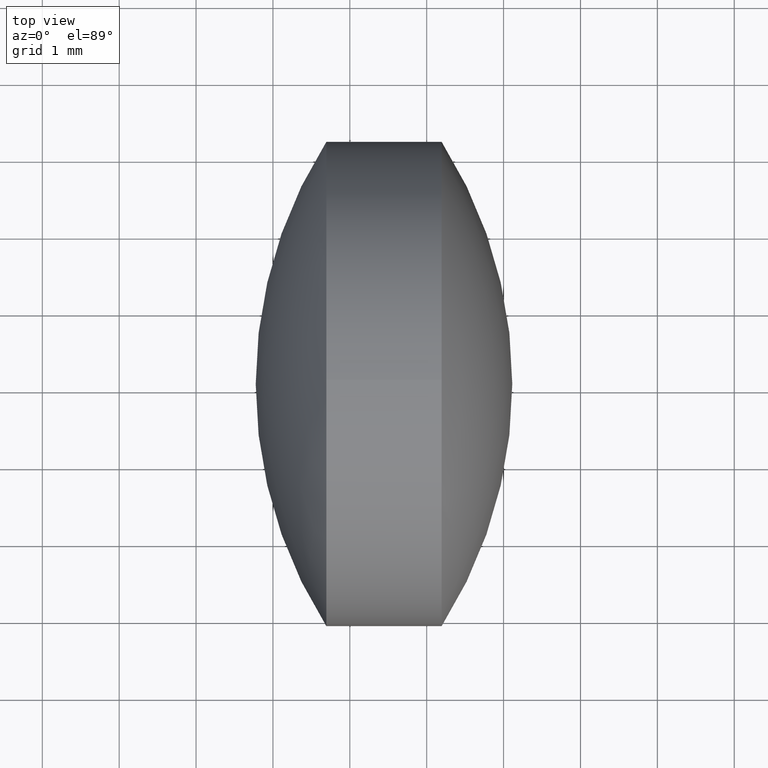
[diagram: clean part render]
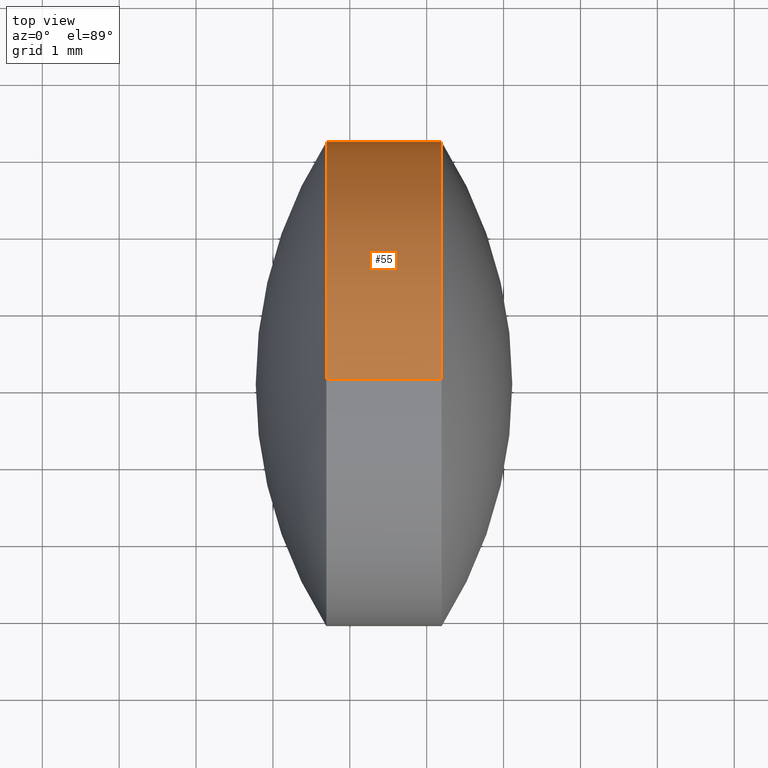
[diagram: same view with one face highlighted and labeled with its STEP entity id]
A machine part, top view. The second image highlights one B-rep face of the part: STEP entity #55.
In plain terms, the highlighted cylindrical surface (partial cylindrical patch) has radius 3.15 mm, axis along (-1, -0, -0).
Its self-contained STEP definition (entity closure, byte-faithful):
#3 = EDGE_CURVE ( 'NONE', #273, #116, #97, .T. ) ;
#5 = LINE ( 'NONE', #196, #64 ) ;
#13 = ORIENTED_EDGE ( 'NONE', *, *, #186, .T. ) ;
#16 = CARTESIAN_POINT ( 'NONE',  ( 20.69444092659728800, 12.05837547940993200, 3.150012600050391900 ) ) ;
#20 = AXIS2_PLACEMENT_3D ( 'NONE', #143, #70, #297 ) ;
#23 = EDGE_LOOP ( 'NONE', ( #282, #13, #324, #58, #217, #345 ) ) ;
#24 = AXIS2_PLACEMENT_3D ( 'NONE', #332, #112, #94 ) ;
#38 = CIRCLE ( 'NONE', #20, 3.150012600050391900 ) ;
#41 = CARTESIAN_POINT ( 'NONE',  ( 18.26476809820352200, 12.05837547940993200, -3.150012600050391900 ) ) ;
#45 = EDGE_CURVE ( 'NONE', #178, #152, #38, .T. ) ;
#48 = VERTEX_POINT ( 'NONE', #300 ) ;
#53 = CARTESIAN_POINT ( 'NONE',  ( 20.69444092659728800, 12.05837547940993200, -3.150012600050391900 ) ) ;
#55 = ADVANCED_FACE ( 'NONE', ( #294 ), #225, .T. ) ;
#58 = ORIENTED_EDGE ( 'NONE', *, *, #3, .F. ) ;
#64 = VECTOR ( 'NONE', #171, 1000.000000000000000 ) ;
#66 = EDGE_CURVE ( 'NONE', #178, #273, #5, .T. ) ;
#70 = DIRECTION ( 'NONE',  ( -1.000000000000000000, -0.0000000000000000000, -0.0000000000000000000 ) ) ;
#78 = DIRECTION ( 'NONE',  ( -1.000000000000000000, -0.0000000000000000000, -0.0000000000000000000 ) ) ;
#79 = AXIS2_PLACEMENT_3D ( 'NONE', #226, #99, #339 ) ;
#89 = CARTESIAN_POINT ( 'NONE',  ( 20.69444092659728800, 12.05837547940993200, 0.0000000000000000000 ) ) ;
#94 = DIRECTION ( 'NONE',  ( 0.0000000000000000000, 0.0000000000000000000, 1.000000000000000000 ) ) ;
#96 = DIRECTION ( 'NONE',  ( -1.000000000000000000, -0.0000000000000000000, -0.0000000000000000000 ) ) ;
#97 = CIRCLE ( 'NONE', #219, 3.150012600050391900 ) ;
#99 = DIRECTION ( 'NONE',  ( -1.000000000000000000, -0.0000000000000000000, -0.0000000000000000000 ) ) ;
#102 = DIRECTION ( 'NONE',  ( 0.0000000000000000000, 0.0000000000000000000, 1.000000000000000000 ) ) ;
#112 = DIRECTION ( 'NONE',  ( -1.000000000000000000, -0.0000000000000000000, -0.0000000000000000000 ) ) ;
#116 = VERTEX_POINT ( 'NONE', #166 ) ;
#134 = CIRCLE ( 'NONE', #140, 3.150012600050391900 ) ;
#140 = AXIS2_PLACEMENT_3D ( 'NONE', #185, #78, #102 ) ;
#143 = CARTESIAN_POINT ( 'NONE',  ( 22.19444092659728800, 12.05837547940993200, 0.0000000000000000000 ) ) ;
#152 = VERTEX_POINT ( 'NONE', #197 ) ;
#156 = VECTOR ( 'NONE', #96, 1000.000000000000000 ) ;
#164 = LINE ( 'NONE', #41, #156 ) ;
#166 = CARTESIAN_POINT ( 'NONE',  ( 20.69444092659728800, 15.20838807946032200, 0.0000000000000000000 ) ) ;
#171 = DIRECTION ( 'NONE',  ( -1.000000000000000000, -0.0000000000000000000, -0.0000000000000000000 ) ) ;
#178 = VERTEX_POINT ( 'NONE', #201 ) ;
#185 = CARTESIAN_POINT ( 'NONE',  ( 22.19444092659728800, 12.05837547940993200, 0.0000000000000000000 ) ) ;
#186 = EDGE_CURVE ( 'NONE', #48, #258, #164, .T. ) ;
#196 = CARTESIAN_POINT ( 'NONE',  ( 18.26476809820352200, 12.05837547940993200, 3.150012600050391900 ) ) ;
#197 = CARTESIAN_POINT ( 'NONE',  ( 22.19444092659728800, 15.20838807946032000, 0.0000000000000000000 ) ) ;
#201 = CARTESIAN_POINT ( 'NONE',  ( 22.19444092659728800, 12.05837547940993200, 3.150012600050391900 ) ) ;
#217 = ORIENTED_EDGE ( 'NONE', *, *, #66, .F. ) ;
#218 = CIRCLE ( 'NONE', #79, 3.150012600050391900 ) ;
#219 = AXIS2_PLACEMENT_3D ( 'NONE', #89, #244, #299 ) ;
#225 = CYLINDRICAL_SURFACE ( 'NONE', #24, 3.150012600050391900 ) ;
#226 = CARTESIAN_POINT ( 'NONE',  ( 20.69444092659728800, 12.05837547940993200, 0.0000000000000000000 ) ) ;
#244 = DIRECTION ( 'NONE',  ( -1.000000000000000000, -0.0000000000000000000, -0.0000000000000000000 ) ) ;
#258 = VERTEX_POINT ( 'NONE', #53 ) ;
#273 = VERTEX_POINT ( 'NONE', #16 ) ;
#282 = ORIENTED_EDGE ( 'NONE', *, *, #335, .T. ) ;
#294 = FACE_OUTER_BOUND ( 'NONE', #23, .T. ) ;
#297 = DIRECTION ( 'NONE',  ( 0.0000000000000000000, 0.0000000000000000000, 1.000000000000000000 ) ) ;
#299 = DIRECTION ( 'NONE',  ( 0.0000000000000000000, 0.0000000000000000000, 1.000000000000000000 ) ) ;
#300 = CARTESIAN_POINT ( 'NONE',  ( 22.19444092659728800, 12.05837547940993200, -3.150012600050391900 ) ) ;
#324 = ORIENTED_EDGE ( 'NONE', *, *, #328, .F. ) ;
#328 = EDGE_CURVE ( 'NONE', #116, #258, #218, .T. ) ;
#332 = CARTESIAN_POINT ( 'NONE',  ( 18.26476809820352200, 12.05837547940993200, 0.0000000000000000000 ) ) ;
#335 = EDGE_CURVE ( 'NONE', #152, #48, #134, .T. ) ;
#339 = DIRECTION ( 'NONE',  ( 0.0000000000000000000, 0.0000000000000000000, 1.000000000000000000 ) ) ;
#345 = ORIENTED_EDGE ( 'NONE', *, *, #45, .T. ) ;